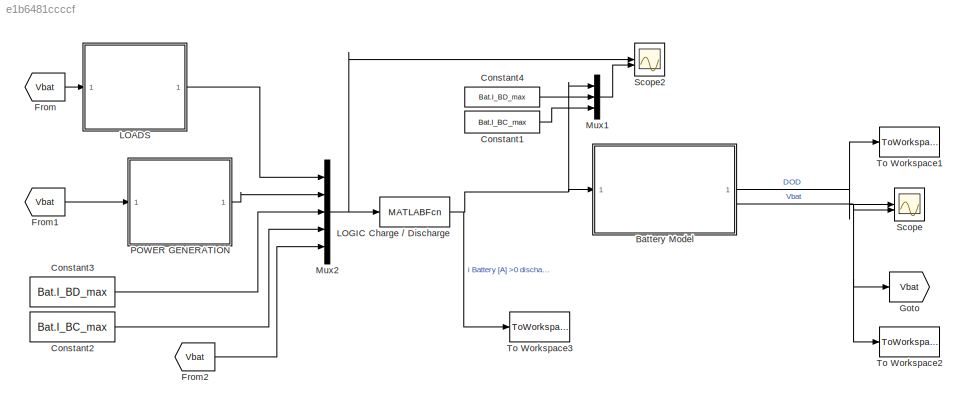
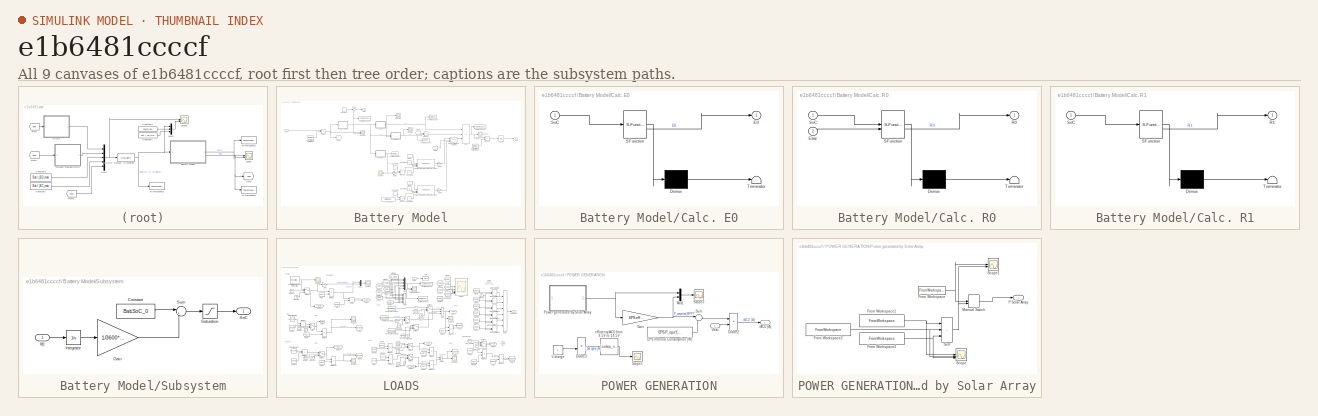
[diagram: thumbnail index - all 9 canvases of the model, root first then tree order]
MODEL slx_e1b6481ccccf
KIND model
CONFIG AbsTol = auto
CONFIG EnableMultiTasking = off
CONFIG FixedStep = delta_t
CONFIG MaxStep = 10
CONFIG MinStep = auto
CONFIG RelTol = 1e-3
CONFIG SampleTimeConstraint = Unconstrained
CONFIG SolverName = FixedStepAuto
CONFIG StartTime = 0.0
CONFIG StopTime = tsimulation
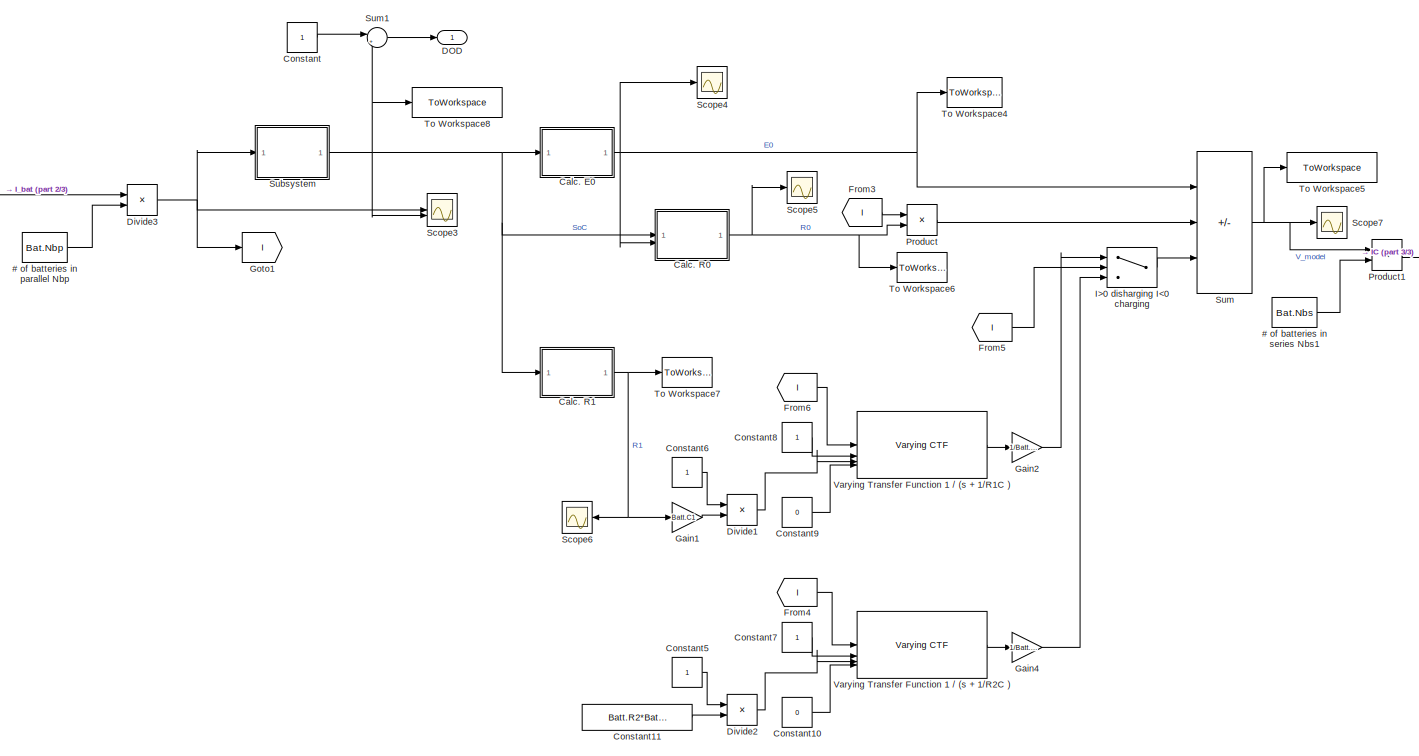
[diagram: Battery Model - part 1/3, most of the canvas]
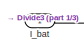
[diagram: Battery Model - part 2/3, top left region]
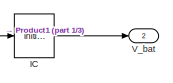
[diagram: Battery Model - part 3/3, middle right region]
BLOCK [SubSystem] Battery Model
BLOCK [Constant] Battery Model/# of batteries in parallel Nbp
  Value = Bat.Nbp
BLOCK [Constant] Battery Model/# of batteries in series Nbs1
  Value = Bat.Nbs
BLOCK [SubSystem] Battery Model/Calc. E0
  ErrorFcn = Stateflow.Translate.translate
  LibrarySourceBlock = simulink/User-Defined\nFunctions/MATLAB Function
  PermitHierarchicalResolution = ExplicitOnly
  SFBlockType = MATLAB Function
  TreatAsAtomicUnit = on
BLOCK [Demux] Battery Model/Calc. E0/ Demux 
  Outputs = 1
BLOCK [S-Function] Battery Model/Calc. E0/ SFunction 
  EnableBusSupport = on
  FunctionName = sf_sfun
  PortCounts = [1 2]
  SFcnIsStateOwnerBlock = off
  SFunctionDeploymentMode = off
  Tag = Stateflow S-Function 2
BLOCK [Terminator] Battery Model/Calc. E0/ Terminator 
BLOCK [Outport] Battery Model/Calc. E0/E0
BLOCK [Inport] Battery Model/Calc. E0/SoC
BLOCK [SubSystem] Battery Model/Calc. R0
  ErrorFcn = Stateflow.Translate.translate
  LibrarySourceBlock = simulink/User-Defined\nFunctions/MATLAB Function
  PermitHierarchicalResolution = ExplicitOnly
  SFBlockType = MATLAB Function
  TreatAsAtomicUnit = on
BLOCK [Demux] Battery Model/Calc. R0/ Demux 
  Outputs = 1
BLOCK [S-Function] Battery Model/Calc. R0/ SFunction 
  EnableBusSupport = on
  FunctionName = sf_sfun
  PortCounts = [2 2]
  SFcnIsStateOwnerBlock = off
  SFunctionDeploymentMode = off
  Tag = Stateflow S-Function 1
BLOCK [Terminator] Battery Model/Calc. R0/ Terminator 
BLOCK [Inport] Battery Model/Calc. R0/Ebat
  Port = 2
BLOCK [Outport] Battery Model/Calc. R0/R0
BLOCK [Inport] Battery Model/Calc. R0/SoC
BLOCK [SubSystem] Battery Model/Calc. R1
  ErrorFcn = Stateflow.Translate.translate
  LibrarySourceBlock = simulink/User-Defined\nFunctions/MATLAB Function
  PermitHierarchicalResolution = ExplicitOnly
  SFBlockType = MATLAB Function
  TreatAsAtomicUnit = on
BLOCK [Demux] Battery Model/Calc. R1/ Demux 
  Outputs = 1
BLOCK [S-Function] Battery Model/Calc. R1/ SFunction 
  EnableBusSupport = on
  FunctionName = sf_sfun
  PortCounts = [1 2]
  SFcnIsStateOwnerBlock = off
  SFunctionDeploymentMode = off
  Tag = Stateflow S-Function 3
BLOCK [Terminator] Battery Model/Calc. R1/ Terminator 
BLOCK [Outport] Battery Model/Calc. R1/R1
BLOCK [Inport] Battery Model/Calc. R1/SoC
BLOCK [Constant] Battery Model/Constant
BLOCK [Constant] Battery Model/Constant10
  Value = 0
BLOCK [Constant] Battery Model/Constant11
  Value = Batt.R2*Batt.C1
BLOCK [Constant] Battery Model/Constant5
BLOCK [Constant] Battery Model/Constant6
BLOCK [Constant] Battery Model/Constant7
BLOCK [Constant] Battery Model/Constant8
BLOCK [Constant] Battery Model/Constant9
  Value = 0
BLOCK [Outport] Battery Model/DOD
BLOCK [Product] Battery Model/Divide1
  Inputs = */
BLOCK [Product] Battery Model/Divide2
  Inputs = */
BLOCK [Product] Battery Model/Divide3
  Inputs = */
BLOCK [From] Battery Model/From3
  GotoTag = I
BLOCK [From] Battery Model/From4
  GotoTag = I
BLOCK [From] Battery Model/From5
  GotoTag = I
BLOCK [From] Battery Model/From6
  GotoTag = I
BLOCK [Gain] Battery Model/Gain1
  Gain = Batt.C1
BLOCK [Gain] Battery Model/Gain2
  Gain = 1/Batt.C1
BLOCK [Gain] Battery Model/Gain4
  Gain = 1/Batt.C1
BLOCK [Goto] Battery Model/Goto1
  GotoTag = I
BLOCK [Switch] Battery Model/I>0 disharging I<0 charging
  InputSameDT = off
  SaturateOnIntegerOverflow = off
BLOCK [InitialCondition] Battery Model/IC
  NameLocation = top
  Value = 4
BLOCK [Inport] Battery Model/I_bat
BLOCK [Product] Battery Model/Product
BLOCK [Product] Battery Model/Product1
BLOCK [Scope] Battery Model/Scope3
  Floating = off
  NumInputPorts = 2
  ScopeSpecificationString = Simulink.scopes.TimeScopeBlockCfg('CurrentConfiguration', extmgr.ConfigurationSet(extmgr.Configuration('Core','General UI',true),extmgr.Configuration('Core','Source UI',true),extmgr.Configuration('Sources','WiredSimulink',true,'DataLoggingVariableName','ScopeData1'),extmgr.Configuration('Visuals','Time Domain',true,'SerializedDisplays',{struct('MinYLimReal','-3.25','MaxYLimReal','3.25','YLabelReal...<+2120ch>
BLOCK [Scope] Battery Model/Scope4
  Floating = off
  NumInputPorts = 1
  ScopeSpecificationString = Simulink.scopes.TimeScopeBlockCfg('CurrentConfiguration', extmgr.ConfigurationSet(extmgr.Configuration('Core','General UI',true),extmgr.Configuration('Core','Source UI',true),extmgr.Configuration('Sources','WiredSimulink',true,'DataLoggingVariableName','ScopeData2'),extmgr.Configuration('Visuals','Time Domain',true,'SerializedDisplays',{struct('MinYLimReal','3.65454','MaxYLimReal','4.2295','YLabel...<+1384ch>
BLOCK [Scope] Battery Model/Scope5
  Floating = off
  NumInputPorts = 1
  ScopeSpecificationString = Simulink.scopes.TimeScopeBlockCfg('CurrentConfiguration', extmgr.ConfigurationSet(extmgr.Configuration('Core','General UI',true),extmgr.Configuration('Core','Source UI',true),extmgr.Configuration('Sources','WiredSimulink',true,'DataLoggingVariableName','ScopeData3'),extmgr.Configuration('Visuals','Time Domain',true,'SerializedDisplays',{struct('MinYLimReal','0.07457','MaxYLimReal','0.07563','YLabe...<+1459ch>
BLOCK [Scope] Battery Model/Scope6
  Floating = off
  NameLocation = top
  NumInputPorts = 1
  ScopeSpecificationString = Simulink.scopes.TimeScopeBlockCfg('CurrentConfiguration', extmgr.ConfigurationSet(extmgr.Configuration('Core','General UI',true),extmgr.Configuration('Core','Source UI',true),extmgr.Configuration('Sources','WiredSimulink',true,'DataLoggingVariableName','ScopeData4'),extmgr.Configuration('Visuals','Time Domain',true,'SerializedDisplays',{struct('MinYLimReal','0.02188','MaxYLimReal','0.04312','YLabe...<+1388ch>
BLOCK [Scope] Battery Model/Scope7
  Floating = off
  NumInputPorts = 1
  ScopeSpecificationString = Simulink.scopes.TimeScopeBlockCfg('CurrentConfiguration', extmgr.ConfigurationSet(extmgr.Configuration('Core','General UI',true),extmgr.Configuration('Core','Source UI',true),extmgr.Configuration('Sources','WiredSimulink',true,'DataLoggingVariableName','ScopeData5'),extmgr.Configuration('Visuals','Time Domain',true,'SerializedDisplays',{struct('MinYLimReal','3.26844','MaxYLimReal','4.17195','YLabe...<+1464ch>
BLOCK [SubSystem] Battery Model/Subsystem
BLOCK [Constant] Battery Model/Subsystem/Constant
  Value = Batt.SoC_0
BLOCK [Gain] Battery Model/Subsystem/Gain
  Gain = 1/3600*1/2.6
BLOCK [Inport] Battery Model/Subsystem/I(t)
BLOCK [Integrator] Battery Model/Subsystem/Integrator
BLOCK [Saturate] Battery Model/Subsystem/Saturation
  LowerLimit = 0
  UpperLimit = 1
BLOCK [Outport] Battery Model/Subsystem/SoC
BLOCK [Sum] Battery Model/Subsystem/Sum
  Inputs = |+-
BLOCK [Sum] Battery Model/Sum
  IconShape = rectangular
  Inputs = +--
BLOCK [Sum] Battery Model/Sum1
  Inputs = |+-
BLOCK [ToWorkspace] Battery Model/To Workspace4
  FixptAsFi = on
  MaxDataPoints = inf
  SampleTime = -1
  SaveFormat = Timeseries
  VariableName = E0
BLOCK [ToWorkspace] Battery Model/To Workspace5
  FixptAsFi = on
  MaxDataPoints = inf
  SampleTime = -1
  SaveFormat = Timeseries
  VariableName = V_model
BLOCK [ToWorkspace] Battery Model/To Workspace6
  FixptAsFi = on
  MaxDataPoints = inf
  SampleTime = -1
  SaveFormat = Timeseries
  VariableName = R0
BLOCK [ToWorkspace] Battery Model/To Workspace7
  FixptAsFi = on
  MaxDataPoints = inf
  SampleTime = -1
  SaveFormat = Timeseries
  VariableName = R1
BLOCK [ToWorkspace] Battery Model/To Workspace8
  FixptAsFi = on
  MaxDataPoints = inf
  SampleTime = -1
  SaveFormat = Timeseries
  VariableName = SoC
BLOCK [Outport] Battery Model/V_bat
  Port = 2
BLOCK [Reference] Battery Model/Varying Transfer Function 1 // (s + 1//R1C )  REF=cstextras/Varying CTF  (lib defined in mdl_a5737024c95e)
  SourceBlock = cstextras/Varying CTF
  SourceType = Varying Transfer Function
BLOCK [Reference] Battery Model/Varying Transfer Function 1 // (s + 1//R2C )  REF=cstextras/Varying CTF  (lib defined in mdl_a5737024c95e)
  SourceBlock = cstextras/Varying CTF
  SourceType = Varying Transfer Function
BLOCK [Constant] Constant1
  Value = Bat.I_BC_max
BLOCK [Constant] Constant2
  Value = Bat.I_BC_max
BLOCK [Constant] Constant3
  Value = Bat.I_BD_max
BLOCK [Constant] Constant4
  Value = Bat.I_BD_max
BLOCK [From] From
  GotoTag = Vbat
BLOCK [From] From1
  GotoTag = Vbat
BLOCK [From] From2
  GotoTag = Vbat
BLOCK [Goto] Goto
  GotoTag = Vbat
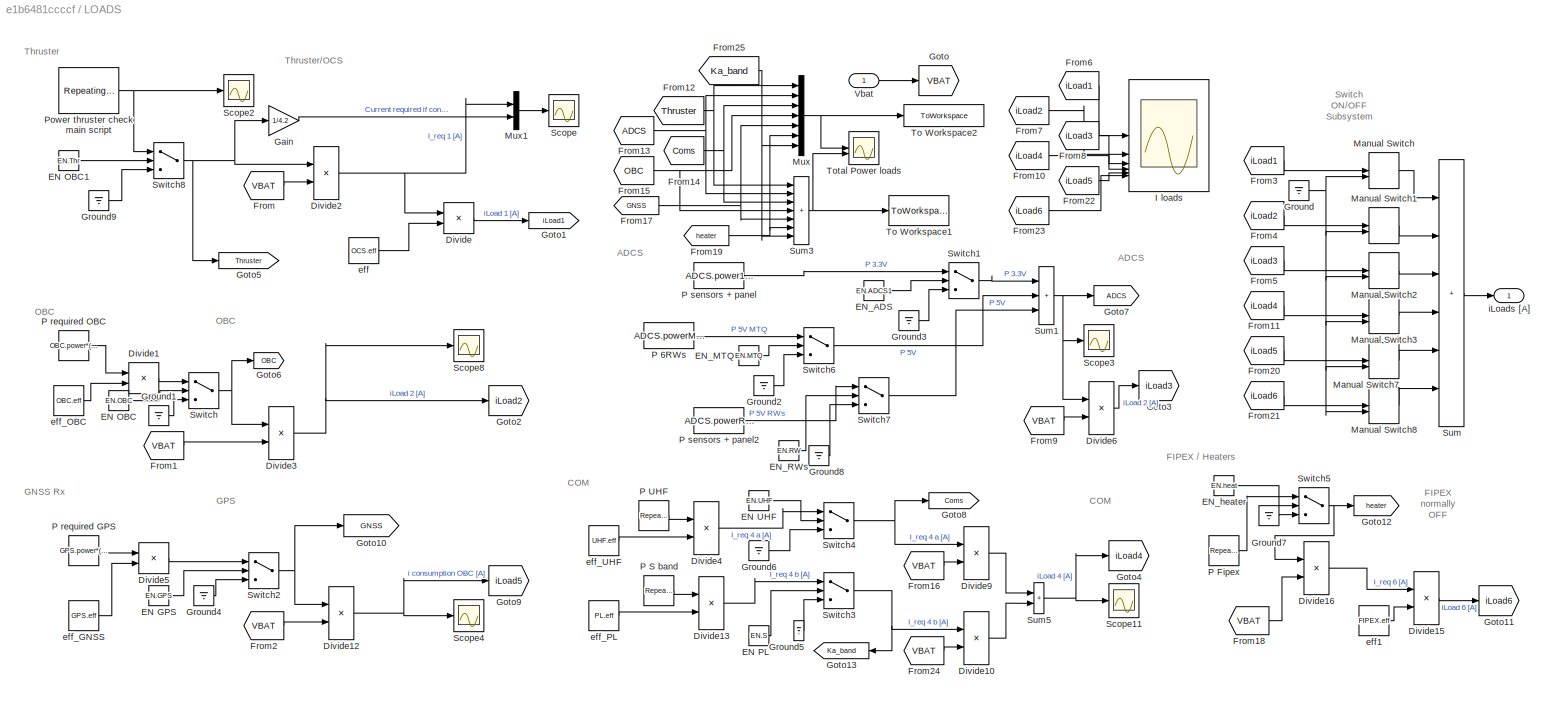
BLOCK [SubSystem] LOADS
BLOCK [Product] LOADS/Divide
  Inputs = */
BLOCK [Product] LOADS/Divide1
  Inputs = */
BLOCK [Product] LOADS/Divide10
  Inputs = */
BLOCK [Product] LOADS/Divide12
  Inputs = */
BLOCK [Product] LOADS/Divide13
  Inputs = */
BLOCK [Product] LOADS/Divide15
  Inputs = */
BLOCK [Product] LOADS/Divide16
  Inputs = */
BLOCK [Product] LOADS/Divide2
  Inputs = */
BLOCK [Product] LOADS/Divide3
  Inputs = */
BLOCK [Product] LOADS/Divide4
  Inputs = */
BLOCK [Product] LOADS/Divide5
  Inputs = */
BLOCK [Product] LOADS/Divide6
  Inputs = */
BLOCK [Product] LOADS/Divide9
  Inputs = */
BLOCK [Constant] LOADS/EN GPS
  Value = EN.GPS
BLOCK [Constant] LOADS/EN OBC
  Value = EN.OBC
BLOCK [Constant] LOADS/EN OBC1
  Value = EN.Thr
BLOCK [Constant] LOADS/EN PL
  Value = EN.S
BLOCK [Constant] LOADS/EN UHF
  Value = EN.UHF
BLOCK [Constant] LOADS/EN_ADS
  Value = EN.ADCS1
BLOCK [Constant] LOADS/EN_MTQ
  Value = EN.MTQ
BLOCK [Constant] LOADS/EN_RWs
  Value = EN.RW
BLOCK [Constant] LOADS/EN_heater
  Value = EN.heat
BLOCK [From] LOADS/From
  GotoTag = VBAT
BLOCK [From] LOADS/From1
  GotoTag = VBAT
BLOCK [From] LOADS/From10
  GotoTag = iLoad4
BLOCK [From] LOADS/From11
  GotoTag = iLoad4
BLOCK [From] LOADS/From12
  GotoTag = Thruster
BLOCK [From] LOADS/From13
  GotoTag = ADCS
BLOCK [From] LOADS/From14
  GotoTag = Coms
BLOCK [From] LOADS/From15
  GotoTag = OBC
BLOCK [From] LOADS/From16
  GotoTag = VBAT
BLOCK [From] LOADS/From17
  GotoTag = GNSS
BLOCK [From] LOADS/From18
  GotoTag = VBAT
BLOCK [From] LOADS/From19
  GotoTag = heater
BLOCK [From] LOADS/From2
  GotoTag = VBAT
BLOCK [From] LOADS/From20
  GotoTag = iLoad5
BLOCK [From] LOADS/From21
  GotoTag = iLoad6
BLOCK [From] LOADS/From22
  GotoTag = iLoad5
BLOCK [From] LOADS/From23
  GotoTag = iLoad6
BLOCK [From] LOADS/From24
  GotoTag = VBAT
BLOCK [From] LOADS/From25
  GotoTag = Ka_band
BLOCK [From] LOADS/From3
  GotoTag = iLoad1
BLOCK [From] LOADS/From4
  GotoTag = iLoad2
BLOCK [From] LOADS/From5
  GotoTag = iLoad3
BLOCK [From] LOADS/From6
  GotoTag = iLoad1
BLOCK [From] LOADS/From7
  GotoTag = iLoad2
BLOCK [From] LOADS/From8
  GotoTag = iLoad3
BLOCK [From] LOADS/From9
  GotoTag = VBAT
BLOCK [Gain] LOADS/Gain
  Gain = 1/4.2
BLOCK [Goto] LOADS/Goto
  GotoTag = VBAT
BLOCK [Goto] LOADS/Goto1
  GotoTag = iLoad1
BLOCK [Goto] LOADS/Goto10
  GotoTag = GNSS
BLOCK [Goto] LOADS/Goto11
  GotoTag = iLoad6
BLOCK [Goto] LOADS/Goto12
  GotoTag = heater
BLOCK [Goto] LOADS/Goto13
  GotoTag = Ka_band
  NameLocation = top
BLOCK [Goto] LOADS/Goto2
  GotoTag = iLoad2
BLOCK [Goto] LOADS/Goto3
  GotoTag = iLoad3
BLOCK [Goto] LOADS/Goto4
  GotoTag = iLoad4
BLOCK [Goto] LOADS/Goto5
  GotoTag = Thruster
BLOCK [Goto] LOADS/Goto6
  GotoTag = OBC
BLOCK [Goto] LOADS/Goto7
  GotoTag = ADCS
BLOCK [Goto] LOADS/Goto8
  GotoTag = Coms
BLOCK [Goto] LOADS/Goto9
  GotoTag = iLoad5
BLOCK [Ground] LOADS/Ground
BLOCK [Ground] LOADS/Ground1
BLOCK [Ground] LOADS/Ground2
BLOCK [Ground] LOADS/Ground3
BLOCK [Ground] LOADS/Ground4
BLOCK [Ground] LOADS/Ground5
BLOCK [Ground] LOADS/Ground6
BLOCK [Ground] LOADS/Ground7
BLOCK [Ground] LOADS/Ground8
BLOCK [Ground] LOADS/Ground9
BLOCK [Scope] LOADS/I loads
  Floating = off
  NumInputPorts = 6
  ScopeSpecificationString = Simulink.scopes.TimeScopeBlockCfg('CurrentConfiguration', extmgr.ConfigurationSet(extmgr.Configuration('Core','General UI',true),extmgr.Configuration('Core','Source UI',true),extmgr.Configuration('Sources','WiredSimulink',true,'DataLoggingVariableName','ScopeData1'),extmgr.Configuration('Visuals','Time Domain',true,'SerializedDisplays',{struct('MinYLimReal','-0.49456','MaxYLimReal','5.47701','YLab...<+5002ch>
BLOCK [ManualSwitch] LOADS/Manual Switch
BLOCK [ManualSwitch] LOADS/Manual Switch1
BLOCK [ManualSwitch] LOADS/Manual Switch2
BLOCK [ManualSwitch] LOADS/Manual Switch3
BLOCK [ManualSwitch] LOADS/Manual Switch7
BLOCK [ManualSwitch] LOADS/Manual Switch8
BLOCK [Mux] LOADS/Mux
  DisplayOption = bar
  Inputs = 7
BLOCK [Mux] LOADS/Mux1
  DisplayOption = bar
  Inputs = 2
BLOCK [Constant] LOADS/P 6RWs
  Value = ADCS.powerMTQ/ADCS.effMTQ *(1+ADCS.marginMTQ)
BLOCK [Reference] LOADS/P Fipex  REF=simulink/Sources/Repeating
Sequence
  SourceBlock = simulink/Sources/Repeating\nSequence
  SourceType = Repeating table
BLOCK [Reference] LOADS/P S band   REF=simulink/Sources/Repeating
Sequence
  NameLocation = left
  SourceBlock = simulink/Sources/Repeating\nSequence
  SourceType = Repeating table
BLOCK [Reference] LOADS/P UHF   REF=simulink/Sources/Repeating
Sequence
  NameLocation = left
  SourceBlock = simulink/Sources/Repeating\nSequence
  SourceType = Repeating table
BLOCK [Constant] LOADS/P required GPS
  Value = GPS.power*(1+GPS.margin)
BLOCK [Constant] LOADS/P required OBC
  Value = OBC.power*(1+OBC.margin)
BLOCK [Constant] LOADS/P sensors + panel
  Value = ADCS.power1*(1+ADCS.margin1)
BLOCK [Constant] LOADS/P sensors + panel2
  Value = ADCS.powerRWs/ADCS.effRW *(1+ADCS.marginRWs)
BLOCK [Reference] LOADS/Power thruster check main script  REF=simulink/Sources/Repeating
Sequence
  SourceBlock = simulink/Sources/Repeating\nSequence
  SourceType = Repeating table
BLOCK [Scope] LOADS/Scope
  Floating = off
  NumInputPorts = 1
  ScopeSpecificationString = Simulink.scopes.TimeScopeBlockCfg('CurrentConfiguration', extmgr.ConfigurationSet(extmgr.Configuration('Core','General UI',true),extmgr.Configuration('Core','Source UI',true),extmgr.Configuration('Sources','WiredSimulink',true,'DataLoggingVariableName','ScopeData2'),extmgr.Configuration('Visuals','Time Domain',true,'SerializedDisplays',{struct('MinYLimReal','-0.38098','MaxYLimReal','3.42882','YLab...<+1570ch>
BLOCK [Scope] LOADS/Scope11
  Floating = off
  NumInputPorts = 1
  ScopeSpecificationString = Simulink.scopes.TimeScopeBlockCfg('CurrentConfiguration', extmgr.ConfigurationSet(extmgr.Configuration('Core','General UI',true),extmgr.Configuration('Core','Source UI',true),extmgr.Configuration('Sources','WiredSimulink',true,'DataLoggingVariableName','ScopeData2'),extmgr.Configuration('Visuals','Time Domain',true,'SerializedDisplays',{struct('MinYLimReal','-0.30605','MaxYLimReal','2.94646','YLab...<+1509ch>
BLOCK [Scope] LOADS/Scope2
  Floating = off
  NumInputPorts = 1
  ScopeSpecificationString = Simulink.scopes.TimeScopeBlockCfg('CurrentConfiguration', extmgr.ConfigurationSet(extmgr.Configuration('Core','General UI',true),extmgr.Configuration('Core','Source UI',true),extmgr.Configuration('Sources','WiredSimulink',true,'DataLoggingVariableName','ScopeData1'),extmgr.Configuration('Visuals','Time Domain',true,'SerializedDisplays',{struct('MinYLimReal','-0.04005','MaxYLimReal','12.64575','YLa...<+1594ch>
BLOCK [Scope] LOADS/Scope3
  Floating = off
  NumInputPorts = 1
  ScopeSpecificationString = Simulink.scopes.TimeScopeBlockCfg('CurrentConfiguration', extmgr.ConfigurationSet(extmgr.Configuration('Core','General UI',true),extmgr.Configuration('Core','Source UI',true),extmgr.Configuration('Sources','WiredSimulink',true,'DataLoggingVariableName','ScopeData2'),extmgr.Configuration('Visuals','Time Domain',true,'SerializedDisplays',{struct('MinYLimReal','-0.06431','MaxYLimReal','0.57875','YLab...<+1577ch>
BLOCK [Scope] LOADS/Scope4
  Floating = off
  NumInputPorts = 1
  ScopeSpecificationString = Simulink.scopes.TimeScopeBlockCfg('CurrentConfiguration', extmgr.ConfigurationSet(extmgr.Configuration('Core','General UI',true),extmgr.Configuration('Core','Source UI',true),extmgr.Configuration('Sources','WiredSimulink',true,'DataLoggingVariableName','ScopeData2'),extmgr.Configuration('Visuals','Time Domain',true,'SerializedDisplays',{struct('MinYLimReal','0.01379','MaxYLimReal','0.01833','YLabe...<+1379ch>
BLOCK [Scope] LOADS/Scope8
  Floating = off
  NumInputPorts = 1
  ScopeSpecificationString = Simulink.scopes.TimeScopeBlockCfg('CurrentConfiguration', extmgr.ConfigurationSet(extmgr.Configuration('Core','General UI',true),extmgr.Configuration('Core','Source UI',true),extmgr.Configuration('Sources','WiredSimulink',true,'DataLoggingVariableName','ScopeData2'),extmgr.Configuration('Visuals','Time Domain',true,'SerializedDisplays',{struct('MinYLimReal','0.00082','MaxYLimReal','0.00466','YLabe...<+1368ch>
BLOCK [Sum] LOADS/Sum
  IconShape = rectangular
  Inputs = ++++++
BLOCK [Sum] LOADS/Sum1
  IconShape = rectangular
  Inputs = +++
BLOCK [Sum] LOADS/Sum3
  IconShape = rectangular
  Inputs = +++++++
BLOCK [Sum] LOADS/Sum5
  IconShape = rectangular
BLOCK [Switch] LOADS/Switch
  Criteria = u2 > Threshold
  InputSameDT = off
  SaturateOnIntegerOverflow = off
BLOCK [Switch] LOADS/Switch1
  Criteria = u2 > Threshold
  InputSameDT = off
  SaturateOnIntegerOverflow = off
BLOCK [Switch] LOADS/Switch2
  Criteria = u2 > Threshold
  InputSameDT = off
  SaturateOnIntegerOverflow = off
BLOCK [Switch] LOADS/Switch3
  Criteria = u2 > Threshold
  InputSameDT = off
  SaturateOnIntegerOverflow = off
BLOCK [Switch] LOADS/Switch4
  Criteria = u2 > Threshold
  InputSameDT = off
  SaturateOnIntegerOverflow = off
BLOCK [Switch] LOADS/Switch5
  Criteria = u2 > Threshold
  InputSameDT = off
  SaturateOnIntegerOverflow = off
BLOCK [Switch] LOADS/Switch6
  Criteria = u2 > Threshold
  InputSameDT = off
  SaturateOnIntegerOverflow = off
BLOCK [Switch] LOADS/Switch7
  Criteria = u2 > Threshold
  InputSameDT = off
  SaturateOnIntegerOverflow = off
BLOCK [Switch] LOADS/Switch8
  Criteria = u2 > Threshold
  InputSameDT = off
  SaturateOnIntegerOverflow = off
BLOCK [ToWorkspace] LOADS/To Workspace1
  FixptAsFi = on
  MaxDataPoints = inf
  SampleTime = -1
  SaveFormat = Timeseries
  VariableName = LOAD
BLOCK [ToWorkspace] LOADS/To Workspace2
  FixptAsFi = on
  MaxDataPoints = inf
  SampleTime = -1
  SaveFormat = Timeseries
  VariableName = LOADS
BLOCK [Scope] LOADS/Total Power loads
  Floating = off
  NumInputPorts = 2
  ScopeSpecificationString = Simulink.scopes.TimeScopeBlockCfg('CurrentConfiguration', extmgr.ConfigurationSet(extmgr.Configuration('Core','General UI',true),extmgr.Configuration('Core','Source UI',true),extmgr.Configuration('Sources','WiredSimulink',true,'DataLoggingVariableName','ScopeData1'),extmgr.Configuration('Visuals','Time Domain',true,'SerializedDisplays',{struct('MinYLimReal','-4.43039','MaxYLimReal','39.87355','YLa...<+2384ch>
BLOCK [Inport] LOADS/Vbat
BLOCK [Constant] LOADS/eff
  Value = OCS.eff
BLOCK [Constant] LOADS/eff1
  Value = FIPEX.eff
BLOCK [Constant] LOADS/eff_GNSS
  Value = GPS.eff
BLOCK [Constant] LOADS/eff_OBC
  Value = OBC.eff
BLOCK [Constant] LOADS/eff_PL
  Value = PL.eff
BLOCK [Constant] LOADS/eff_UHF
  Value = UHF.eff
BLOCK [Outport] LOADS/iLoads [A]
BLOCK [MATLABFcn] LOGIC Charge // Discharge
  MATLABFcn = battchargedischarge2
BLOCK [Mux] Mux1
  DisplayOption = bar
  Inputs = 3
BLOCK [Mux] Mux2
  DisplayOption = bar
  Inputs = 5
BLOCK [SubSystem] POWER GENERATION
BLOCK [Product] POWER GENERATION/Divide2
  Inputs = */
BLOCK [Product] POWER GENERATION/Divide3
  Commented = on
  Inputs = */
BLOCK [Constant] POWER GENERATION/EPS Internal Consumption [W]
  Value = EPS.P_eps*(1+EPS.margin)
BLOCK [Gain] POWER GENERATION/Gain
  Gain = EPS.eff_MPPT
BLOCK [Mux] POWER GENERATION/Mux1
  DisplayOption = bar
  Inputs = 2
BLOCK [SubSystem] POWER GENERATION/Power generated by Solar Array
BLOCK [FromWorkspace] POWER GENERATION/Power generated by Solar Array/From Workspace
  VariableName = Power.Psa1
BLOCK [FromWorkspace] POWER GENERATION/Power generated by Solar Array/From Workspace1
  VariableName = Power.Sun_pX_T
BLOCK [FromWorkspace] POWER GENERATION/Power generated by Solar Array/From Workspace2
  VariableName = Power.Sun_pY_T
BLOCK [FromWorkspace] POWER GENERATION/Power generated by Solar Array/From Workspace3
  VariableName = Power.Sun_nY_T
BLOCK [ManualSwitch] POWER GENERATION/Power generated by Solar Array/Manual Switch
BLOCK [Outport] POWER GENERATION/Power generated by Solar Array/P Solar Array
BLOCK [Scope] POWER GENERATION/Power generated by Solar Array/Scope
  Floating = off
  NumInputPorts = 3
  ScopeSpecificationString = Simulink.scopes.TimeScopeBlockCfg('CurrentConfiguration', extmgr.ConfigurationSet(extmgr.Configuration('Core','General UI',true),extmgr.Configuration('Core','Source UI',true),extmgr.Configuration('Sources','WiredSimulink',true,'DataLoggingVariableName','ScopeData1'),extmgr.Configuration('Visuals','Time Domain',true,'SerializedDisplays',{struct('MinYLimReal','-0.70941','MaxYLimReal','6.38466','YLab...<+1439ch>
BLOCK [Scope] POWER GENERATION/Power generated by Solar Array/Scope1
  Floating = off
  NumInputPorts = 2
  ScopeSpecificationString = Simulink.scopes.TimeScopeBlockCfg('CurrentConfiguration', extmgr.ConfigurationSet(extmgr.Configuration('Core','General UI',true),extmgr.Configuration('Core','Source UI',true),extmgr.Configuration('Sources','WiredSimulink',true,'DataLoggingVariableName','ScopeData2'),extmgr.Configuration('Visuals','Time Domain',true,'SerializedDisplays',{struct('MinYLimReal','-1.39408','MaxYLimReal','12.54676','YLa...<+1437ch>
BLOCK [Sum] POWER GENERATION/Power generated by Solar Array/Sum
  IconShape = rectangular
  Inputs = +++
BLOCK [Scope] POWER GENERATION/Scope1
  Commented = on
  Floating = off
  NumInputPorts = 1
  ScopeSpecificationString = Simulink.scopes.TimeScopeBlockCfg('CurrentConfiguration', extmgr.ConfigurationSet(extmgr.Configuration('Core','General UI',true),extmgr.Configuration('Core','Source UI',true),extmgr.Configuration('Sources','WiredSimulink',true,'DataLoggingVariableName','ScopeData1'),extmgr.Configuration('Visuals','Time Domain',true,'SerializedDisplays',{struct('MinYLimReal','0.90141','MaxYLimReal','0.93729','YLabe...<+1456ch>
BLOCK [Scope] POWER GENERATION/Scope3
  Floating = off
  NumInputPorts = 1
  ScopeSpecificationString = Simulink.scopes.TimeScopeBlockCfg('CurrentConfiguration', extmgr.ConfigurationSet(extmgr.Configuration('Core','General UI',true),extmgr.Configuration('Core','Source UI',true),extmgr.Configuration('Sources','WiredSimulink',true,'DataLoggingVariableName','ScopeData4'),extmgr.Configuration('Visuals','Time Domain',true,'SerializedDisplays',{struct('MinYLimReal','-1.25169','MaxYLimReal','11.26523','YLa...<+1481ch>
BLOCK [Sum] POWER GENERATION/Sum
  Inputs = |+-
BLOCK [Constant] POWER GENERATION/V charge
  Commented = on
  Value = 4
BLOCK [Inport] POWER GENERATION/Vbat
BLOCK [Lookup_n-D] POWER GENERATION/efficiency ACU from 9.5V to 14.5V
  BreakpointsForDimension1 = [0,0.13,0.16,0.236,0.4187,0.654,0.684,0.745,0.801,0.9372,1.046,1.16,1.21,1.5,1.66,2,4]
  Commented = on
  InputPortMap = u0
  InternalRulePriority = Speed
  NumberOfTableDimensions = 1
  RndMeth = Simplest
  Table = [0.905,0.928,0.9296,0.9296,0.9337,0.9296,0.9296,0.9296,0.9275,0.9275,0.9254,0.9254,0.9234,0.9193,0.9193,0.9134,0.9134]
BLOCK [Outport] POWER GENERATION/iACU [A]
BLOCK [Scope] Scope
  Floating = off
  NumInputPorts = 2
  ScopeSpecificationString = Simulink.scopes.TimeScopeBlockCfg('CurrentConfiguration', extmgr.ConfigurationSet(extmgr.Configuration('Core','General UI',true),extmgr.Configuration('Core','Source UI',true),extmgr.Configuration('Sources','WiredSimulink',true),extmgr.Configuration('Visuals','Time Domain',true,'SerializedDisplays',{struct('MinYLimReal','-0.00948','MaxYLimReal','0.14445','YLabelReal','','MinYLimMag','0.00000','MaxY...<+2011ch>
BLOCK [Scope] Scope2
  Floating = off
  NumInputPorts = 2
  ScopeSpecificationString = Simulink.scopes.TimeScopeBlockCfg('CurrentConfiguration', extmgr.ConfigurationSet(extmgr.Configuration('Core','General UI',true),extmgr.Configuration('Core','Source UI',true),extmgr.Configuration('Sources','WiredSimulink',true,'DataLoggingVariableName','ScopeData3'),extmgr.Configuration('Visuals','Time Domain',true,'SerializedDisplays',{struct('MinYLimReal','-14.3','MaxYLimReal','24.7','YLabelReal...<+2849ch>
BLOCK [ToWorkspace] To Workspace1
  FixptAsFi = on
  MaxDataPoints = inf
  SampleTime = -1
  SaveFormat = Timeseries
  VariableName = DOD
BLOCK [ToWorkspace] To Workspace2
  FixptAsFi = on
  MaxDataPoints = inf
  SampleTime = -1
  SaveFormat = Timeseries
  VariableName = Vbat
BLOCK [ToWorkspace] To Workspace3
  FixptAsFi = on
  MaxDataPoints = inf
  SampleTime = -1
  SaveFormat = Timeseries
  VariableName = Ibat
ANNOTATION LOADS: ADCS
ANNOTATION LOADS: COM
ANNOTATION LOADS: FIPEX normally OFF
ANNOTATION LOADS: GPS
ANNOTATION LOADS: OBC
ANNOTATION LOADS: Thruster/OCS
ANNOTATION LOADS: FIPEX / Heaters
ANNOTATION LOADS: GNSS Rx
ANNOTATION LOADS: Switch ON/OFF Subsystem
ANNOTATION LOADS: Thruster
LINE Battery Model/# of batteries in parallel Nbp:1 -> Battery Model/Divide3:2
LINE Battery Model/# of batteries in series Nbs1:1 -> Battery Model/Product1:2
NET Battery Model/Calc. E0:1 -> Battery Model/Calc. R0:2, Battery Model/Scope4:1, Battery Model/Sum:1, Battery Model/To Workspace4:1
NET Battery Model/Calc. R0:1 -> Battery Model/Product:2, Battery Model/Scope5:1, Battery Model/To Workspace6:1
NET Battery Model/Calc. R1:1 -> Battery Model/Gain1:1, Battery Model/Scope6:1, Battery Model/To Workspace7:1
LINE Battery Model/Constant10:1 -> Battery Model/Varying Transfer Function 1 // (s + 1//R2C ):4
LINE Battery Model/Constant11:1 -> Battery Model/Divide2:2
LINE Battery Model/Constant5:1 -> Battery Model/Divide2:1
LINE Battery Model/Constant6:1 -> Battery Model/Divide1:1
LINE Battery Model/Constant7:1 -> Battery Model/Varying Transfer Function 1 // (s + 1//R2C ):2
LINE Battery Model/Constant8:1 -> Battery Model/Varying Transfer Function 1 // (s + 1//R1C ):2
LINE Battery Model/Constant9:1 -> Battery Model/Varying Transfer Function 1 // (s + 1//R1C ):4
LINE Battery Model/Constant:1 -> Battery Model/Sum1:1
LINE Battery Model/Divide1:1 -> Battery Model/Varying Transfer Function 1 // (s + 1//R1C ):3
LINE Battery Model/Divide2:1 -> Battery Model/Varying Transfer Function 1 // (s + 1//R2C ):3
NET Battery Model/Divide3:1 -> Battery Model/Goto1:1, Battery Model/Scope3:1, Battery Model/Subsystem:1
LINE Battery Model/From3:1 -> Battery Model/Product:1
LINE Battery Model/From4:1 -> Battery Model/Varying Transfer Function 1 // (s + 1//R2C ):1
LINE Battery Model/From5:1 -> Battery Model/I>0 disharging I<0 charging:2
LINE Battery Model/From6:1 -> Battery Model/Varying Transfer Function 1 // (s + 1//R1C ):1
LINE Battery Model/Gain1:1 -> Battery Model/Divide1:2
LINE Battery Model/Gain2:1 -> Battery Model/I>0 disharging I<0 charging:1
LINE Battery Model/Gain4:1 -> Battery Model/I>0 disharging I<0 charging:3
LINE Battery Model/I>0 disharging I<0 charging:1 -> Battery Model/Sum:3
LINE Battery Model/IC:1 -> Battery Model/V_bat:1
LINE Battery Model/I_bat:1 -> Battery Model/Divide3:1
LINE Battery Model/Product1:1 -> Battery Model/IC:1
LINE Battery Model/Product:1 -> Battery Model/Sum:2
LINE Battery Model/Subsystem/Constant:1 -> Battery Model/Subsystem/Sum:1
LINE Battery Model/Subsystem/Gain:1 -> Battery Model/Subsystem/Sum:2
LINE Battery Model/Subsystem/I(t):1 -> Battery Model/Subsystem/Integrator:1
LINE Battery Model/Subsystem/Integrator:1 -> Battery Model/Subsystem/Gain:1
LINE Battery Model/Subsystem/Saturation:1 -> Battery Model/Subsystem/SoC:1
LINE Battery Model/Subsystem/Sum:1 -> Battery Model/Subsystem/Saturation:1
NET Battery Model/Subsystem:1 -> Battery Model/Calc. E0:1, Battery Model/Calc. R0:1, Battery Model/Calc. R1:1, Battery Model/Scope3:2, Battery Model/Sum1:2, Battery Model/To Workspace8:1
LINE Battery Model/Sum1:1 -> Battery Model/DOD:1
NET Battery Model/Sum:1 -> Battery Model/Product1:1, Battery Model/Scope7:1, Battery Model/To Workspace5:1
LINE Battery Model/Varying Transfer Function 1 // (s + 1//R1C ):1 -> Battery Model/Gain2:1
LINE Battery Model/Varying Transfer Function 1 // (s + 1//R2C ):1 -> Battery Model/Gain4:1
NET Battery Model:1 -> Scope:1, To Workspace1:1
NET Battery Model:2 -> Goto:1, Scope:2, To Workspace2:1
LINE Constant1:1 -> Mux1:3
LINE Constant2:1 -> Mux2:4
LINE Constant3:1 -> Mux2:3
LINE Constant4:1 -> Mux1:2
LINE From1:1 -> POWER GENERATION:1
LINE From2:1 -> Mux2:5
LINE From:1 -> LOADS:1
LINE LOADS/Divide10:1 -> LOADS/Sum5:2
NET LOADS/Divide12:1 -> LOADS/Goto9:1, LOADS/Scope4:1
LINE LOADS/Divide13:1 -> LOADS/Switch3:1
LINE LOADS/Divide15:1 -> LOADS/Goto11:1
LINE LOADS/Divide16:1 -> LOADS/Divide15:1
LINE LOADS/Divide1:1 -> LOADS/Switch:1
NET LOADS/Divide2:1 -> LOADS/Divide:1, LOADS/Mux1:1
NET LOADS/Divide3:1 -> LOADS/Goto2:1, LOADS/Scope8:1
LINE LOADS/Divide4:1 -> LOADS/Switch4:1
LINE LOADS/Divide5:1 -> LOADS/Switch2:1
LINE LOADS/Divide6:1 -> LOADS/Goto3:1
LINE LOADS/Divide9:1 -> LOADS/Sum5:1
LINE LOADS/Divide:1 -> LOADS/Goto1:1
LINE LOADS/EN GPS:1 -> LOADS/Switch2:2
LINE LOADS/EN OBC1:1 -> LOADS/Switch8:2
LINE LOADS/EN OBC:1 -> LOADS/Switch:2
LINE LOADS/EN PL:1 -> LOADS/Switch3:2
LINE LOADS/EN UHF:1 -> LOADS/Switch4:2
LINE LOADS/EN_ADS:1 -> LOADS/Switch1:2
LINE LOADS/EN_MTQ:1 -> LOADS/Switch6:2
LINE LOADS/EN_RWs:1 -> LOADS/Switch7:2
LINE LOADS/EN_heater:1 -> LOADS/Switch5:2
LINE LOADS/From10:1 -> LOADS/I loads:4
LINE LOADS/From11:1 -> LOADS/Manual Switch3:1
NET LOADS/From12:1 -> LOADS/Mux:1, LOADS/Sum3:1
NET LOADS/From13:1 -> LOADS/Mux:2, LOADS/Sum3:2
NET LOADS/From14:1 -> LOADS/Mux:3, LOADS/Sum3:3
NET LOADS/From15:1 -> LOADS/Mux:4, LOADS/Sum3:4
LINE LOADS/From16:1 -> LOADS/Divide9:2
NET LOADS/From17:1 -> LOADS/Mux:5, LOADS/Sum3:5
LINE LOADS/From18:1 -> LOADS/Divide16:2
NET LOADS/From19:1 -> LOADS/Mux:6, LOADS/Sum3:6
LINE LOADS/From1:1 -> LOADS/Divide3:2
LINE LOADS/From20:1 -> LOADS/Manual Switch7:1
LINE LOADS/From21:1 -> LOADS/Manual Switch8:1
LINE LOADS/From22:1 -> LOADS/I loads:5
LINE LOADS/From23:1 -> LOADS/I loads:6
LINE LOADS/From24:1 -> LOADS/Divide10:2
NET LOADS/From25:1 -> LOADS/Mux:7, LOADS/Sum3:7
LINE LOADS/From2:1 -> LOADS/Divide12:2
LINE LOADS/From3:1 -> LOADS/Manual Switch:1
LINE LOADS/From4:1 -> LOADS/Manual Switch1:1
LINE LOADS/From5:1 -> LOADS/Manual Switch2:1
LINE LOADS/From6:1 -> LOADS/I loads:1
LINE LOADS/From7:1 -> LOADS/I loads:2
LINE LOADS/From8:1 -> LOADS/I loads:3
LINE LOADS/From9:1 -> LOADS/Divide6:2
LINE LOADS/From:1 -> LOADS/Divide2:2
LINE LOADS/Gain:1 -> LOADS/Mux1:2
LINE LOADS/Ground1:1 -> LOADS/Switch:3
LINE LOADS/Ground2:1 -> LOADS/Switch6:3
LINE LOADS/Ground3:1 -> LOADS/Switch1:3
LINE LOADS/Ground4:1 -> LOADS/Switch2:3
LINE LOADS/Ground5:1 -> LOADS/Switch3:3
LINE LOADS/Ground6:1 -> LOADS/Switch4:3
LINE LOADS/Ground7:1 -> LOADS/Switch5:3
LINE LOADS/Ground8:1 -> LOADS/Switch7:3
LINE LOADS/Ground9:1 -> LOADS/Switch8:3
NET LOADS/Ground:1 -> LOADS/Manual Switch1:2, LOADS/Manual Switch2:2, LOADS/Manual Switch3:2, LOADS/Manual Switch7:2, LOADS/Manual Switch8:2, LOADS/Manual Switch:2
LINE LOADS/Manual Switch1:1 -> LOADS/Sum:2
LINE LOADS/Manual Switch2:1 -> LOADS/Sum:3
LINE LOADS/Manual Switch3:1 -> LOADS/Sum:4
LINE LOADS/Manual Switch7:1 -> LOADS/Sum:5
LINE LOADS/Manual Switch8:1 -> LOADS/Sum:6
LINE LOADS/Manual Switch:1 -> LOADS/Sum:1
LINE LOADS/Mux1:1 -> LOADS/Scope:1
NET LOADS/Mux:1 -> LOADS/To Workspace2:1, LOADS/Total Power loads:1
LINE LOADS/P 6RWs:1 -> LOADS/Switch6:1
LINE LOADS/P Fipex:1 -> LOADS/Switch5:1
LINE LOADS/P S band :1 -> LOADS/Divide13:1
LINE LOADS/P UHF :1 -> LOADS/Divide4:1
LINE LOADS/P required GPS:1 -> LOADS/Divide5:1
LINE LOADS/P required OBC:1 -> LOADS/Divide1:1
LINE LOADS/P sensors + panel2:1 -> LOADS/Switch7:1
LINE LOADS/P sensors + panel:1 -> LOADS/Switch1:1
NET LOADS/Power thruster check main script:1 -> LOADS/Scope2:1, LOADS/Switch8:1
NET LOADS/Sum1:1 -> LOADS/Divide6:1, LOADS/Goto7:1, LOADS/Scope3:1
NET LOADS/Sum3:1 -> LOADS/To Workspace1:1, LOADS/Total Power loads:2
NET LOADS/Sum5:1 -> LOADS/Goto4:1, LOADS/Scope11:1
LINE LOADS/Sum:1 -> LOADS/iLoads [A]:1
LINE LOADS/Switch1:1 -> LOADS/Sum1:1
NET LOADS/Switch2:1 -> LOADS/Divide12:1, LOADS/Goto10:1
NET LOADS/Switch3:1 -> LOADS/Divide10:1, LOADS/Goto13:1
NET LOADS/Switch4:1 -> LOADS/Divide9:1, LOADS/Goto8:1
NET LOADS/Switch5:1 -> LOADS/Divide16:1, LOADS/Goto12:1
LINE LOADS/Switch6:1 -> LOADS/Sum1:2
LINE LOADS/Switch7:1 -> LOADS/Sum1:3
NET LOADS/Switch8:1 -> LOADS/Divide2:1, LOADS/Gain:1, LOADS/Goto5:1
NET LOADS/Switch:1 -> LOADS/Divide3:1, LOADS/Goto6:1
LINE LOADS/Vbat:1 -> LOADS/Goto:1
LINE LOADS/eff1:1 -> LOADS/Divide15:2
LINE LOADS/eff:1 -> LOADS/Divide:2
LINE LOADS/eff_GNSS:1 -> LOADS/Divide5:2
LINE LOADS/eff_OBC:1 -> LOADS/Divide1:2
LINE LOADS/eff_PL:1 -> LOADS/Divide13:2
LINE LOADS/eff_UHF:1 -> LOADS/Divide4:2
LINE LOADS:1 -> Mux2:1
NET LOGIC Charge // Discharge:1 -> Battery Model:1, Mux1:1, To Workspace3:1
LINE Mux1:1 -> Scope2:2
NET Mux2:1 -> LOGIC Charge // Discharge:1, Scope2:1
LINE POWER GENERATION/Divide2:1 -> POWER GENERATION/iACU [A]:1
LINE POWER GENERATION/Divide3:1 -> POWER GENERATION/efficiency ACU from 9.5V to 14.5V:1
LINE POWER GENERATION/EPS Internal Consumption [W]:1 -> POWER GENERATION/Sum:2
NET POWER GENERATION/Gain:1 -> POWER GENERATION/Mux1:2, POWER GENERATION/Sum:1
LINE POWER GENERATION/Mux1:1 -> POWER GENERATION/Scope3:1
NET POWER GENERATION/Power generated by Solar Array/From Workspace1:1 -> POWER GENERATION/Power generated by Solar Array/Scope:1, POWER GENERATION/Power generated by Solar Array/Sum:1
NET POWER GENERATION/Power generated by Solar Array/From Workspace2:1 -> POWER GENERATION/Power generated by Solar Array/Scope:2, POWER GENERATION/Power generated by Solar Array/Sum:2
NET POWER GENERATION/Power generated by Solar Array/From Workspace3:1 -> POWER GENERATION/Power generated by Solar Array/Scope:3, POWER GENERATION/Power generated by Solar Array/Sum:3
NET POWER GENERATION/Power generated by Solar Array/From Workspace:1 -> POWER GENERATION/Power generated by Solar Array/Manual Switch:1, POWER GENERATION/Power generated by Solar Array/Scope1:1
LINE POWER GENERATION/Power generated by Solar Array/Manual Switch:1 -> POWER GENERATION/Power generated by Solar Array/P Solar Array:1
NET POWER GENERATION/Power generated by Solar Array/Sum:1 -> POWER GENERATION/Power generated by Solar Array/Manual Switch:2, POWER GENERATION/Power generated by Solar Array/Scope1:2
NET POWER GENERATION/Power generated by Solar Array:1 -> POWER GENERATION/Gain:1, POWER GENERATION/Mux1:1
LINE POWER GENERATION/Sum:1 -> POWER GENERATION/Divide2:1
LINE POWER GENERATION/V charge:1 -> POWER GENERATION/Divide3:2
LINE POWER GENERATION/Vbat:1 -> POWER GENERATION/Divide2:2
LINE POWER GENERATION/efficiency ACU from 9.5V to 14.5V:1 -> POWER GENERATION/Scope1:1
LINE POWER GENERATION:1 -> Mux2:2
note: NET lines group one-source signal fan-out (src -> all destinations, sorted); 1:1 wires keep LINE
CHART Battery Model/Calc. E0 states=1 transitions=1
  STATE_LABEL 'eML_blk_kernel()'
  STATE_LABEL 'SCRIPT:\nfunction E0 = fcn(SoC)\nebat0 = 3.288;\nebat1 = 1.813;\nebat2 = -4.205;\nebat3 = 5.306;\nebat4 = -2.03;\n\nE0 = ebat0 + ebat1.*SoC + ebat2.*SoC^2 + ebat3.*SoC^3 + ebat4.*SoC^4;\n'
CHART Battery Model/Calc. R1 states=1 transitions=1
  STATE_LABEL 'eML_blk_kernel()'
  STATE_LABEL 'SCRIPT:\nfunction R1 = fcn(SoC)\ndint0 = 0.065;\ndint1 = -0.057;\ndint2 = -0.029;\ndint3 = 0.161;\ndint4 = -0.116;\n\nR1 = dint0 + dint1.*SoC + dint2.*SoC^2 + dint3.*SoC^3 + dint4.*SoC^4;\n'
CHART Battery Model/Calc. R0 states=1 transitions=1
  STATE_LABEL 'eML_blk_kernel()'
  STATE_LABEL 'SCRIPT:\nfunction R0 = fcn(SoC,Ebat)\nrsint0 = 0.053;\nrsint1 = 0.005;\nrsint2 = 0.004;\nrsint3 = -2;\nrsint4 = 3.6;\n\nR0 = rsint0 + rsint1*Ebat + rsint2*exp(rsint3*(Ebat-rsint4));'
CHART  states=0 transitions=0
CHART  states=0 transitions=0
CHART  states=0 transitions=0
